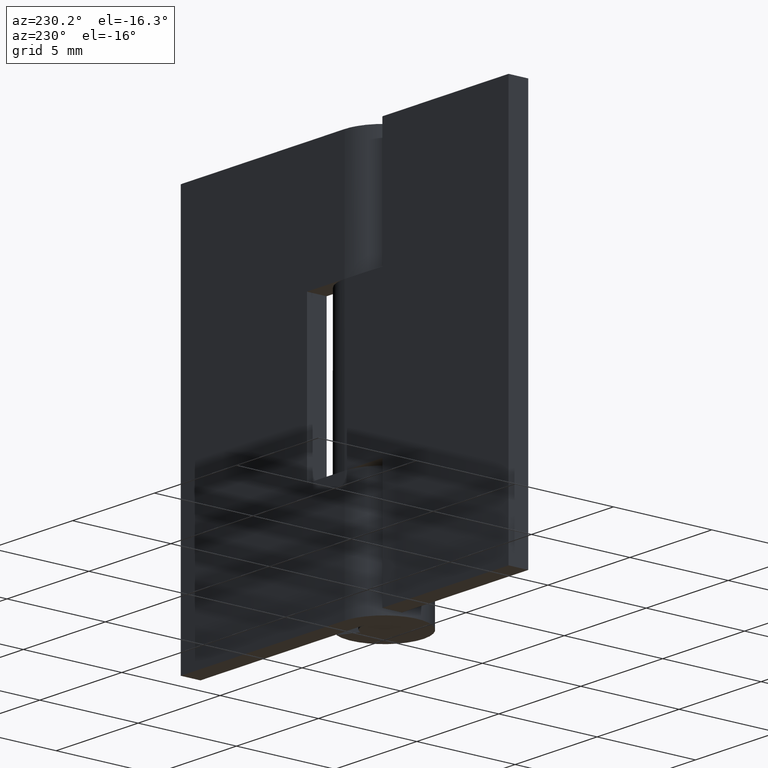
[diagram: clean part render]
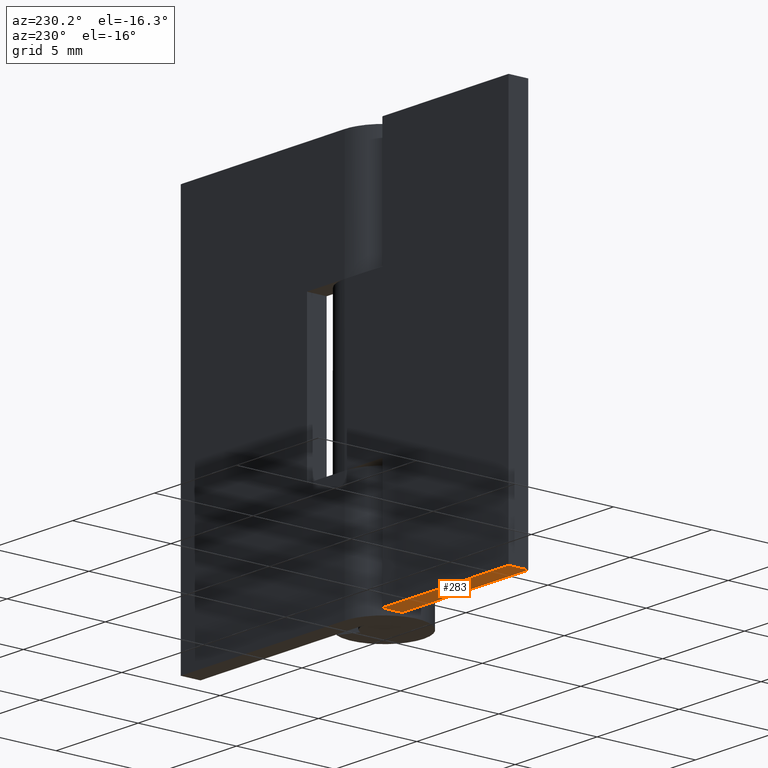
[diagram: same view with one face highlighted and labeled with its STEP entity id]
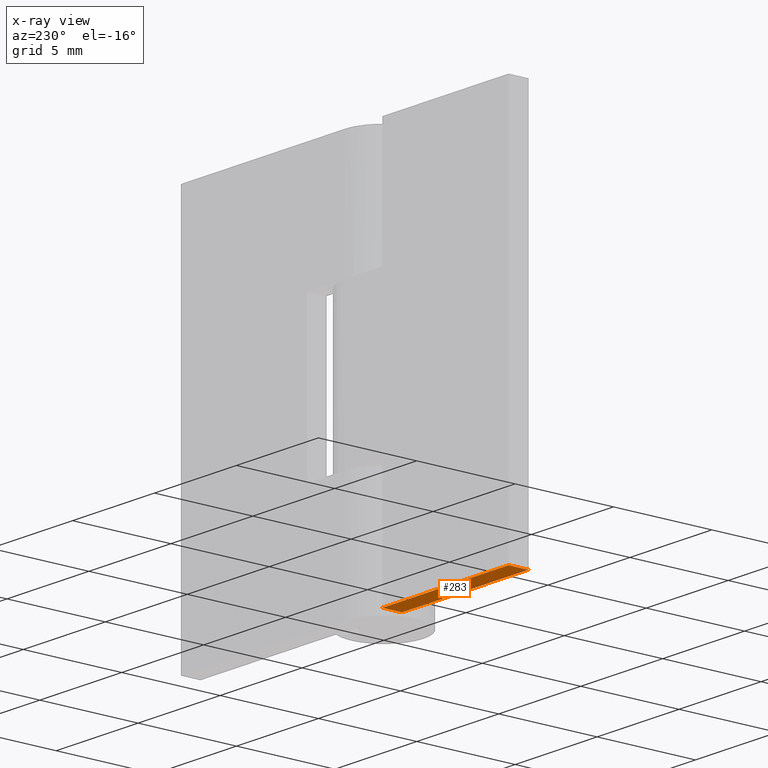
[diagram: x-ray of the same camera — body ghosted, the highlighted face saturated]
A machine part, auxiliary view. The second image highlights one B-rep face of the part: STEP entity #283.
The next image is the same camera in x-ray: the body ghosted, the highlighted face saturated — about 0% of this face is hidden behind the body in this view.
In plain terms, the highlighted face is a freeform B-spline surface patch.
Its self-contained STEP definition (entity closure, byte-faithful):
#49=CARTESIAN_POINT('',(-2.300003000000000,1.0,0.0));
#50=VERTEX_POINT('',#49);
#51=CARTESIAN_POINT('',(-2.300003000000000,2.0,0.0));
#52=VERTEX_POINT('',#51);
#53=CARTESIAN_POINT('',(-2.300003000000000,1.0,0.0));
#54=CARTESIAN_POINT('',(-2.300003000000000,2.0,0.0));
#55=QUASI_UNIFORM_CURVE('',1,(#53,#54),.UNSPECIFIED.,.F.,.U.);
#56=EDGE_CURVE('',#50,#52,#55,.T.);
#256=CARTESIAN_POINT('',(-10.384614835225911,0.950050001938194,0.0));
#257=CARTESIAN_POINT('',(-1.915387958244075,0.950050001938194,0.0));
#258=CARTESIAN_POINT('',(-10.384614835225911,2.049950024883896,0.0));
#259=CARTESIAN_POINT('',(-1.915387958244075,2.049950024883896,0.0));
#260=B_SPLINE_SURFACE_WITH_KNOTS('',1,1,((#256,#258),(#257,#259)),.UNSPECIFIED.,.F.,.F.,.U.,(2,2),(2,2),(0.0,8.469226876981837),(0.041708334948495,0.958291687403247),.UNSPECIFIED.);
#261=ORIENTED_EDGE('',*,*,#56,.F.);
#262=CARTESIAN_POINT('',(-10.0,1.0,0.0));
#263=VERTEX_POINT('',#262);
#264=CARTESIAN_POINT('',(-10.0,1.0,0.0));
#265=CARTESIAN_POINT('',(-2.300003000000000,1.0,0.0));
#266=QUASI_UNIFORM_CURVE('',1,(#264,#265),.UNSPECIFIED.,.F.,.U.);
#267=EDGE_CURVE('',#263,#50,#266,.T.);
#268=ORIENTED_EDGE('',*,*,#267,.F.);
#269=CARTESIAN_POINT('',(-10.0,2.0,0.0));
#270=VERTEX_POINT('',#269);
#271=CARTESIAN_POINT('',(-10.0,2.0,0.0));
#272=CARTESIAN_POINT('',(-10.0,1.0,0.0));
#273=QUASI_UNIFORM_CURVE('',1,(#271,#272),.UNSPECIFIED.,.F.,.U.);
#274=EDGE_CURVE('',#270,#263,#273,.T.);
#275=ORIENTED_EDGE('',*,*,#274,.F.);
#276=CARTESIAN_POINT('',(-2.300003000000000,2.0,0.0));
#277=CARTESIAN_POINT('',(-10.0,2.0,0.0));
#278=QUASI_UNIFORM_CURVE('',1,(#276,#277),.UNSPECIFIED.,.F.,.U.);
#279=EDGE_CURVE('',#52,#270,#278,.T.);
#280=ORIENTED_EDGE('',*,*,#279,.F.);
#281=EDGE_LOOP('',(#261,#268,#275,#280));
#282=FACE_OUTER_BOUND('',#281,.T.);
#283=ADVANCED_FACE('',(#282),#260,.F.);